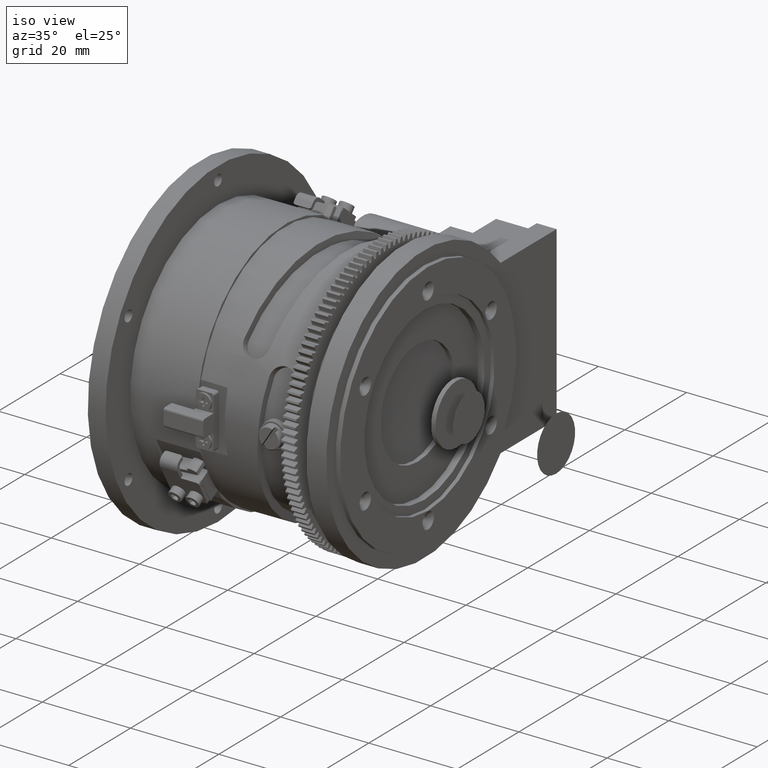
[diagram: clean part render]
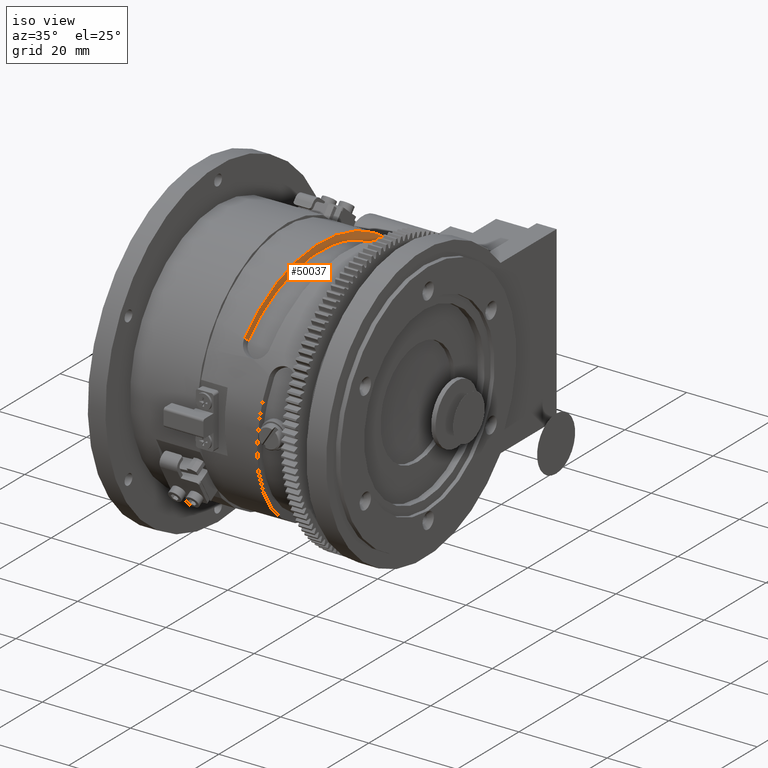
[diagram: same view with one face highlighted and labeled with its STEP entity id]
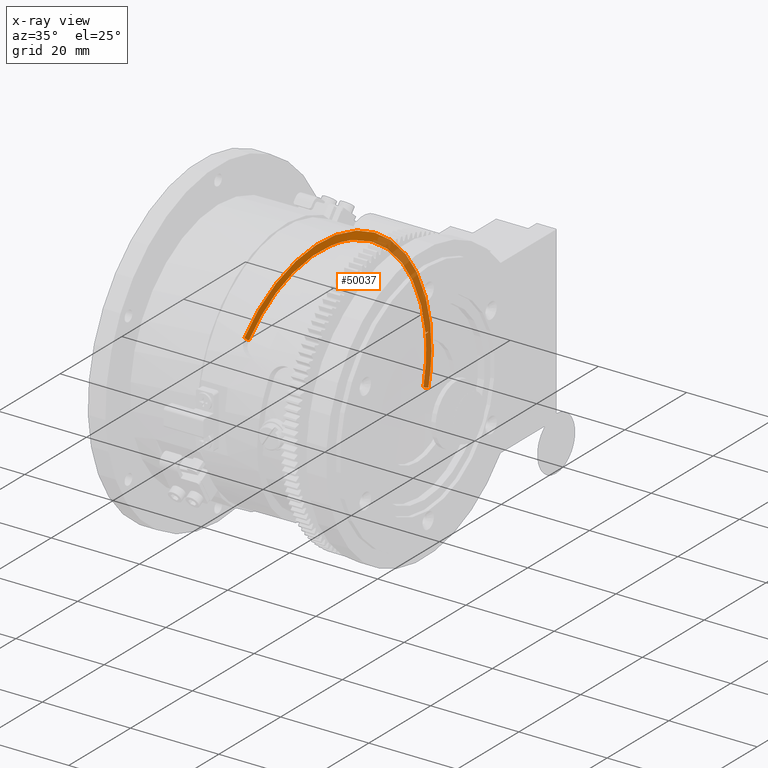
[diagram: x-ray of the same camera — body ghosted, the highlighted face saturated]
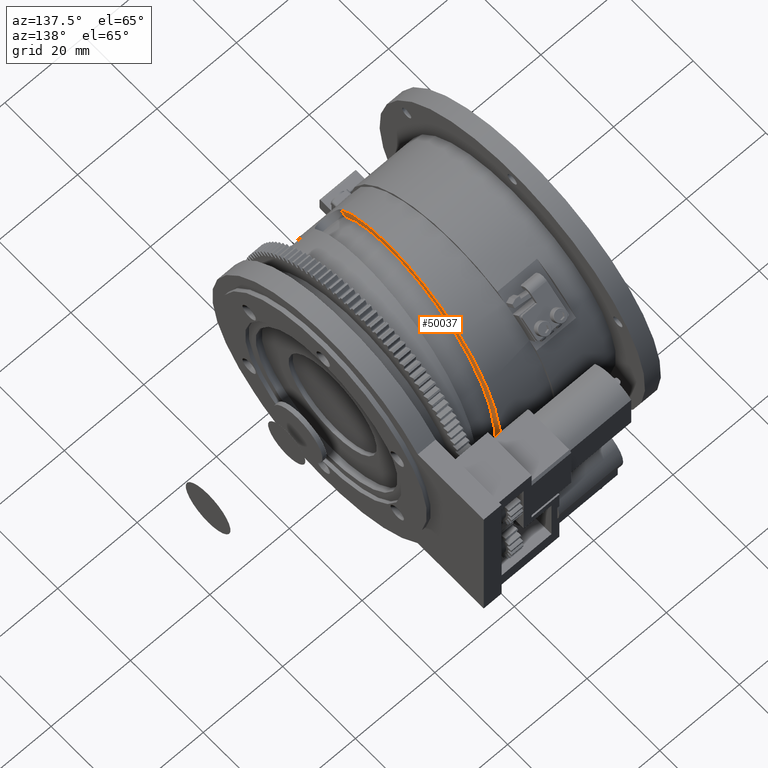
[diagram: same view with one face highlighted and labeled with its STEP entity id]
A machine part, iso view. The second image highlights one B-rep face of the part: STEP entity #50037.
The next image is the same camera in x-ray: the body ghosted, the highlighted face saturated — about 48% of this face is hidden behind the body in this view.
A second angle (auxiliary view) of the same face is appended — the face is thin or edge-on in the first view.
In plain terms, the highlighted face is a freeform B-spline surface patch.
Its self-contained STEP definition (entity closure, byte-faithful):
#193 = CARTESIAN_POINT ( 'NONE',  ( 28.65912248610975865, 2.432918942211645064, 26.16696623082178164 ) ) ;
#463 = CARTESIAN_POINT ( 'NONE',  ( 26.69976171329333070, -16.42266466825820714, 20.48096148711486819 ) ) ;
#590 = EDGE_CURVE ( 'NONE', #56748, #9812, #20956, .T. ) ;
#761 = CARTESIAN_POINT ( 'NONE',  ( 30.28236497446123821, 17.51349618633485861, 19.59324377211298440 ) ) ;
#2550 = CARTESIAN_POINT ( 'NONE',  ( 29.07735906025461148, 7.145748961394721377, 27.28951204744544867 ) ) ;
#2837 = CARTESIAN_POINT ( 'NONE',  ( 28.45235906025461503, 0.3432393797079490438, 28.20747033562495432 ) ) ;
#2866 = CARTESIAN_POINT ( 'NONE',  ( 28.37237634216733184, -0.5552179911066306151, 28.00757262180605522 ) ) ;
#3112 = CARTESIAN_POINT ( 'NONE',  ( 33.45235906025461503, 20.24656686113868886, -8.606772353062458691 ) ) ;
#3208 = CARTESIAN_POINT ( 'NONE',  ( 29.62360881462349127, 12.71113600203987914, 24.96312854992593699 ) ) ;
#3506 = CARTESIAN_POINT ( 'NONE',  ( 29.30970692076924422, 9.545599810577469313, 26.32617760158372988 ) ) ;
#3619 = CARTESIAN_POINT ( 'NONE',  ( 33.45235906025462214, 25.76835782326742574, -10.95407390389767421 ) ) ;
#3674 = CARTESIAN_POINT ( 'NONE',  ( 32.30945722083792049, 26.25242634234819050, 1.215912384961441717 ) ) ;
#3872 = ORIENTED_EDGE ( 'NONE', *, *, #49125, .F. ) ;
#3908 = CARTESIAN_POINT ( 'NONE',  ( 32.66749801122523422, 27.88925024329572722, -2.632409474507216629 ) ) ;
#4233 = CARTESIAN_POINT ( 'NONE',  ( 29.47073172647060346, 10.50077017519247846, 24.09058888010519794 ) ) ;
#4381 = CARTESIAN_POINT ( 'NONE',  ( 25.95235906025461148, -23.08152830379399489, 15.85064828835579220 ) ) ;
#4524 = CARTESIAN_POINT ( 'NONE',  ( 30.14816684389557722, 16.45647464454130571, 20.48948593595337542 ) ) ;
#4581 = CARTESIAN_POINT ( 'NONE',  ( 30.01202517995882957, 16.37711844866021238, 22.77616175634334539 ) ) ;
#4808 = EDGE_CURVE ( 'NONE', #9812, #8354, #39338, .T. ) ;
#5072 = CARTESIAN_POINT ( 'NONE',  ( 30.55201856064747545, 19.46305011897737458, 17.61735985081367062 ) ) ;
#5166 = CARTESIAN_POINT ( 'NONE',  ( 30.01485906025461148, 16.51370943821415693, 22.94538587502783500 ) ) ;
#5463 = CARTESIAN_POINT ( 'NONE',  ( 32.20235906025461503, 28.10105597160057300, 2.471810932882144041 ) ) ;
#6017 = FACE_OUTER_BOUND ( 'NONE', #42348, .T. ) ;
#6209 = CARTESIAN_POINT ( 'NONE',  ( 32.46553726518576610, 26.24006662815195057, -0.3906039416165908440 ) ) ;
#6530 = VERTEX_POINT ( 'NONE', #12996 ) ;
#6672 = DIRECTION ( 'NONE',  ( -0.000000000000000000, -0.8243402965640715951, 0.5660945817269925628 ) ) ;
#6768 = CARTESIAN_POINT ( 'NONE',  ( 32.79616908713558132, 25.98279367461262268, -3.782388144531659169 ) ) ;
#6891 = CARTESIAN_POINT ( 'NONE',  ( 26.81129707406424956, -16.54613559106062581, 22.59229528694194045 ) ) ;
#7440 = CARTESIAN_POINT ( 'NONE',  ( 31.88985906025461503, 27.58080930295187372, 5.922681335438159778 ) ) ;
#7538 = CARTESIAN_POINT ( 'NONE',  ( 30.94890720888204072, 23.46678115323301128, 15.37200372231181866 ) ) ;
#7718 = CARTESIAN_POINT ( 'NONE',  ( 29.38985906025461148, 8.219079897831178982, 20.58442557442861798 ) ) ;
#7816 = CARTESIAN_POINT ( 'NONE',  ( 29.27056138118002337, 9.140176902100501266, 26.46962728146469956 ) ) ;
#8354 = VERTEX_POINT ( 'NONE', #35006 ) ;
#8377 = B_SPLINE_CURVE_WITH_KNOTS ( 'NONE', 3,
 ( #56506, #52154, #47854, #25821 ),
 .UNSPECIFIED., .F., .F.,
 ( 4, 4 ),
 ( 0.000000000000000000, 1.000000000000000000 ),
 .UNSPECIFIED. ) ;
#8565 = CARTESIAN_POINT ( 'NONE',  ( 27.23974288612929939, -11.75059710440809368, 23.47563838131990721 ) ) ;
#8902 = CARTESIAN_POINT ( 'NONE',  ( 32.58961866922962258, 27.95648434805076477, -1.778872371129446961 ) ) ;
#9132 = CARTESIAN_POINT ( 'NONE',  ( 29.94515265722432673, 14.76008814353951770, 21.70987556328335444 ) ) ;
#9244 = B_SPLINE_CURVE_WITH_KNOTS ( 'NONE', 3,
 ( #26639, #13661, #13365, #44030 ),
 .UNSPECIFIED., .F., .F.,
 ( 4, 4 ),
 ( 0.000000000000000000, 1.000000000000000000 ),
 .UNSPECIFIED. ) ;
#9348 = VERTEX_POINT ( 'NONE', #24250 ) ;
#9361 = CARTESIAN_POINT ( 'NONE',  ( 32.44719334315014692, 26.99999999999519318, -0.2076254192251460462 ) ) ;
#9411 = CARTESIAN_POINT ( 'NONE',  ( 29.74078396447835004, 12.97436995792459946, 22.82214480320803318 ) ) ;
#9493 = CARTESIAN_POINT ( 'NONE',  ( 33.45235906025461503, 25.76835782326742574, -10.95407390389767599 ) ) ;
#9681 = CARTESIAN_POINT ( 'NONE',  ( 31.29596108562676804, 23.70817834560676829, 11.27369308180726470 ) ) ;
#9773 = CARTESIAN_POINT ( 'NONE',  ( 29.07735906025461148, 7.161061280597709633, 27.34798957326140467 ) ) ;
#9812 = VERTEX_POINT ( 'NONE', #37376 ) ;
#10059 = CARTESIAN_POINT ( 'NONE',  ( 29.38985906025461148, 10.48306281514285843, 26.25449916447578147 ) ) ;
#10167 = ORIENTED_EDGE ( 'NONE', *, *, #13561, .T. ) ;
#10619 = DIRECTION ( 'NONE',  ( -0.000000000000000000, 0.9202984936881225542, -0.3912169251392028091 ) ) ;
#10929 = CARTESIAN_POINT ( 'NONE',  ( 30.95235906025461148, 18.54900819954161406, 12.13285396802671023 ) ) ;
#11242 = CARTESIAN_POINT ( 'NONE',  ( 26.57625661421236885, -18.56199752841578388, 20.98068365063580387 ) ) ;
#11380 = CARTESIAN_POINT ( 'NONE',  ( 33.45235906025462214, 24.15136915671667950, -10.26669547347366596 ) ) ;
#11482 = CARTESIAN_POINT ( 'NONE',  ( 30.95235906025461148, 23.60782861759842177, 15.44181414112490458 ) ) ;
#11509 = CARTESIAN_POINT ( 'NONE',  ( 27.74916927094057328, -7.316598481445510949, 27.04080433988005083 ) ) ;
#11775 = CARTESIAN_POINT ( 'NONE',  ( 28.45235906025461503, 0.2696880840562460580, 22.16301240656245852 ) ) ;
#12074 = CARTESIAN_POINT ( 'NONE',  ( 28.13985906025461503, -2.468959678458861440, 22.02671307077540774 ) ) ;
#12175 = CARTESIAN_POINT ( 'NONE',  ( 29.42775170132942719, 10.75390369934423518, 25.85613310963880096 ) ) ;
#12996 = CARTESIAN_POINT ( 'NONE',  ( 32.46553726518576610, 26.24006662815195057, -0.3906039416165908440 ) ) ;
#13038 = B_SPLINE_CURVE_WITH_KNOTS ( 'NONE', 3,
 ( #11380, #50152, #42058, #46676, #6768, #24102, #24666, #6209 ),
 .UNSPECIFIED., .F., .F.,
 ( 4, 2, 2, 4 ),
 ( 1.734723475976806902E-18, 0.005072786137763096205, 0.007609179206644643007, 0.01014557227552619068 ),
 .UNSPECIFIED. ) ;
#13187 = CARTESIAN_POINT ( 'NONE',  ( 27.30816222686728878, -11.11609942801271345, 23.78262341404516178 ) ) ;
#13246 = CARTESIAN_POINT ( 'NONE',  ( 31.73052852826863912, 26.97262835616573895, 7.563897322628196918 ) ) ;
#13365 = CARTESIAN_POINT ( 'NONE',  ( 32.46259314346599467, 26.74668887605067624, -0.3676711234893771940 ) ) ;
#13473 = CARTESIAN_POINT ( 'NONE',  ( 29.87692134225526175, 14.17364480063911536, 22.09733835304622573 ) ) ;
#13561 = EDGE_CURVE ( 'NONE', #39456, #21370, #45637, .T. ) ;
#13661 = CARTESIAN_POINT ( 'NONE',  ( 32.46403207727055218, 26.49337775210135959, -0.3791418827682444537 ) ) ;
#14048 = CARTESIAN_POINT ( 'NONE',  ( 27.03605236495523556, -13.59988555652041420, 22.48756606360255716 ) ) ;
#14838 = EDGE_CURVE ( 'NONE', #8354, #21713, #24563, .T. ) ;
#14973 = CARTESIAN_POINT ( 'NONE',  ( 25.95235906025461148, -23.13098872158784047, 15.88461396325941166 ) ) ;
#15250 = CARTESIAN_POINT ( 'NONE',  ( 26.26490207277272049, -21.18367363142739634, 18.72027137942719932 ) ) ;
#15861 = CARTESIAN_POINT ( 'NONE',  ( 27.51329321891867608, -9.783509473713300153, 26.24928392833183466 ) ) ;
#16114 = CARTESIAN_POINT ( 'NONE',  ( 30.32735906025461148, 19.17942975512082526, 20.68643686755478939 ) ) ;
#16512 = CARTESIAN_POINT ( 'NONE',  ( 31.49733994976936557, 26.16891741504155533, 9.995820576151221104 ) ) ;
#16599 = ORIENTED_EDGE ( 'NONE', *, *, #4808, .F. ) ;
#16703 = CARTESIAN_POINT ( 'NONE',  ( 26.26490207059180193, -21.13837711968179534, 18.68024227332767850 ) ) ;
#16909 = CARTESIAN_POINT ( 'NONE',  ( 32.90315167702465260, 27.52728029956022837, -5.195400926755771032 ) ) ;
#17461 = EDGE_CURVE ( 'NONE', #6530, #9348, #9244, .T. ) ;
#17529 = CARTESIAN_POINT ( 'NONE',  ( 27.44377270436880778, -9.836194628620431146, 24.33988739036506033 ) ) ;
#17588 = CARTESIAN_POINT ( 'NONE',  ( 30.79377799454486819, 22.48501455124823778, 16.77321080316725599 ) ) ;
#17803 = CARTESIAN_POINT ( 'NONE',  ( 28.11906137544889006, -3.121048410002574602, 26.06612039952910820 ) ) ;
#18161 = CARTESIAN_POINT ( 'NONE',  ( 32.44676915559867325, 26.74743036426332310, -0.2015109881059729546 ) ) ;
#18379 = CARTESIAN_POINT ( 'NONE',  ( 26.49709482701399921, -17.99726893954986906, 19.11221766579418357 ) ) ;
#18471 = CARTESIAN_POINT ( 'NONE',  ( 33.13981604773649536, 27.16932721407341944, -7.811801826521392655 ) ) ;
#19319 = CARTESIAN_POINT ( 'NONE',  ( 30.95235906025461148, 23.65841682177898875, 15.47490374285588821 ) ) ;
#19591 = CARTESIAN_POINT ( 'NONE',  ( 31.26485906025461148, 25.38814228631513714, 12.43525486725171092 ) ) ;
#20165 = CARTESIAN_POINT ( 'NONE',  ( 33.13865351529432957, 26.96957726107866193, -7.721095018187140724 ) ) ;
#20175 = CARTESIAN_POINT ( 'NONE',  ( 27.51485906025460793, -7.715761970860175012, 20.77832687694443337 ) ) ;
#20198 = CARTESIAN_POINT ( 'NONE',  ( 27.04699563397940310, -14.41718346034387466, 24.06485326194721708 ) ) ;
#20734 = CARTESIAN_POINT ( 'NONE',  ( 33.13981626800938329, 21.30168132174813067, -6.124721638048233885 ) ) ;
#20762 = CARTESIAN_POINT ( 'NONE',  ( 27.43535031923805434, -10.58175358623166673, 25.93754981607253995 ) ) ;
#20830 = CARTESIAN_POINT ( 'NONE',  ( 31.14565006803320912, 24.53719612102320369, 13.49491668283747536 ) ) ;
#20956 = B_SPLINE_CURVE_WITH_KNOTS ( 'NONE', 3,
 ( #31707, #18161, #40444, #26529 ),
 .UNSPECIFIED., .F., .F.,
 ( 4, 4 ),
 ( 0.000000000000000000, 1.000000000000000000 ),
 .UNSPECIFIED. ) ;
#21057 = CARTESIAN_POINT ( 'NONE',  ( 26.11004490840779368, -22.10115941880112800, 17.27824997097878423 ) ) ;
#21126 = CARTESIAN_POINT ( 'NONE',  ( 32.00473062582525330, 27.61902664600693313, 4.623390182970912754 ) ) ;
#21370 = VERTEX_POINT ( 'NONE', #33425 ) ;
#21713 = VERTEX_POINT ( 'NONE', #4381 ) ;
#21844 = CARTESIAN_POINT ( 'NONE',  ( 29.06620275459465574, 6.554028761957967575, 25.42108325387525625 ) ) ;
#22185 = CARTESIAN_POINT ( 'NONE',  ( 30.48269193981735370, 20.24947749995233792, 19.35709938962689947 ) ) ;
#22404 = CARTESIAN_POINT ( 'NONE',  ( 28.25505325193904937, -1.727165168773918902, 26.19542853896651380 ) ) ;
#22684 = CARTESIAN_POINT ( 'NONE',  ( 27.51124470681638456, -9.188299750859441062, 24.59165559922970345 ) ) ;
#22780 = CARTESIAN_POINT ( 'NONE',  ( 26.57735906025461148, -18.71039222748457220, 21.19232302173065818 ) ) ;
#23620 = CARTESIAN_POINT ( 'NONE',  ( 33.45235906025462214, 23.00746234220305553, -9.780423128480066453 ) ) ;
#23920 = CARTESIAN_POINT ( 'NONE',  ( 28.13985906025461503, -3.149045844434347874, 28.09407130754353332 ) ) ;
#24102 = CARTESIAN_POINT ( 'NONE',  ( 32.63148761303893508, 26.17270866774196136, -2.097939037934213768 ) ) ;
#24250 = CARTESIAN_POINT ( 'NONE',  ( 32.46122055992481847, 26.99999999999519318, -0.3561924302656296337 ) ) ;
#24502 = CARTESIAN_POINT ( 'NONE',  ( 26.85077186943468064, -16.19430775936352163, 22.84579102450897636 ) ) ;
#24563 = LINE ( 'NONE', #37902, #32939 ) ;
#24666 = CARTESIAN_POINT ( 'NONE',  ( 32.54846705757098135, 26.22736126399961520, -1.244127335434832782 ) ) ;
#24771 = CARTESIAN_POINT ( 'NONE',  ( 27.20235906025461148, -13.01023543785598591, 25.03024110667934110 ) ) ;
#25057 = CARTESIAN_POINT ( 'NONE',  ( 28.13985906025461503, -3.142312318038551044, 28.03399845371414756 ) ) ;
#25146 = CARTESIAN_POINT ( 'NONE',  ( 28.45054843445874937, 0.3042525897938893609, 28.01170901622427678 ) ) ;
#25334 = CARTESIAN_POINT ( 'NONE',  ( 26.26490185249985032, -16.60872594512155587, 14.67733166337585615 ) ) ;
#25436 = CARTESIAN_POINT ( 'NONE',  ( 31.88676000801998711, 27.37558628735438049, 5.896022689511071668 ) ) ;
#25821 = CARTESIAN_POINT ( 'NONE',  ( 32.44719334315014692, 26.99999999999519318, -0.2076254192251460462 ) ) ;
#25842 = CARTESIAN_POINT ( 'NONE',  ( 33.29467321178494643, 26.44587164134495438, -9.360290746362297298 ) ) ;
#26108 = EDGE_CURVE ( 'NONE', #9348, #56748, #8377, .T. ) ;
#26165 = CARTESIAN_POINT ( 'NONE',  ( 31.36336364565732993, 23.99813469867637039, 10.64278091737183018 ) ) ;
#26452 = CARTESIAN_POINT ( 'NONE',  ( 26.63238885020762936, -16.95840196779029441, 20.03973942160996558 ) ) ;
#26516 = CARTESIAN_POINT ( 'NONE',  ( 30.24713637369232444, 18.37718639065834125, 21.14284532935770144 ) ) ;
#26529 = CARTESIAN_POINT ( 'NONE',  ( 32.44597700248070993, 26.24229109278998351, -0.1892783408781241739 ) ) ;
#26639 = CARTESIAN_POINT ( 'NONE',  ( 32.46553726518576610, 26.24006662815195057, -0.3906039416165908440 ) ) ;
#26749 = CARTESIAN_POINT ( 'NONE',  ( 26.08887515483874253, -20.83764895619452062, 16.01439099099116703 ) ) ;
#27111 = CARTESIAN_POINT ( 'NONE',  ( 33.45235906025461503, 25.82357573288871322, -10.97754691940602889 ) ) ;
#27345 = ORIENTED_EDGE ( 'NONE', *, *, #14838, .F. ) ;
#27402 = CARTESIAN_POINT ( 'NONE',  ( 33.13981604991742103, 27.11123171018900990, -7.795098062279084417 ) ) ;
#28543 = CARTESIAN_POINT ( 'NONE',  ( 25.95235906025461148, -18.13548652440956488, 12.45408079799383749 ) ) ;
#28903 = EDGE_CURVE ( 'NONE', #39456, #6530, #13038, .T. ) ;
#29124 = CARTESIAN_POINT ( 'NONE',  ( 27.98378497730211478, -4.809867450997110438, 27.63722174623825367 ) ) ;
#29393 = CARTESIAN_POINT ( 'NONE',  ( 31.88985906025461503, 21.67063588089075665, 4.653535334987124905 ) ) ;
#29421 = CARTESIAN_POINT ( 'NONE',  ( 26.69349564633671790, -17.57195595123145182, 21.80391189032886956 ) ) ;
#29494 = CARTESIAN_POINT ( 'NONE',  ( 31.41962408647288996, 25.85200982889152854, 10.78924886614738732 ) ) ;
#29766 = CARTESIAN_POINT ( 'NONE',  ( 31.84763921753750537, 27.28184350234930733, 6.315443048598846865 ) ) ;
#29796 = ORIENTED_EDGE ( 'NONE', *, *, #590, .F. ) ;
#29977 = ORIENTED_EDGE ( 'NONE', *, *, #26108, .F. ) ;
#30512 = CARTESIAN_POINT ( 'NONE',  ( 30.48450148632927892, 18.98942522807912070, 18.12667697399422195 ) ) ;
#30785 = CARTESIAN_POINT ( 'NONE',  ( 31.09400226995597905, 22.76616440734377633, 13.12692875695563011 ) ) ;
#30841 = CARTESIAN_POINT ( 'NONE',  ( 30.32618256693048409, 19.02417269862632665, 20.56257495874023533 ) ) ;
#31074 = CARTESIAN_POINT ( 'NONE',  ( 26.22445407168605769, -19.95519863190543930, 17.10128557815070138 ) ) ;
#31369 = CARTESIAN_POINT ( 'NONE',  ( 28.92976411422995042, 5.185188125361495537, 25.73520139648492133 ) ) ;
#31707 = CARTESIAN_POINT ( 'NONE',  ( 32.44719334315014692, 26.99999999999519318, -0.2076254192251460462 ) ) ;
#31716 = ORIENTED_EDGE ( 'NONE', *, *, #17461, .F. ) ;
#32589 = CARTESIAN_POINT ( 'NONE',  ( 30.32735906025461148, 19.22052853316750998, 20.73076494655669322 ) ) ;
#32939 = VECTOR ( 'NONE', #6672, 1000.000000000000114 ) ;
#33175 = CARTESIAN_POINT ( 'NONE',  ( 30.01485906025461148, 12.94731317322563768, 17.98996754278732979 ) ) ;
#33425 = CARTESIAN_POINT ( 'NONE',  ( 33.45235906025462214, 25.76835782326742574, -10.95407390389767421 ) ) ;
#33460 = CARTESIAN_POINT ( 'NONE',  ( 26.57735906025461148, -14.66958763380828579, 16.61550628931127349 ) ) ;
#33485 = CARTESIAN_POINT ( 'NONE',  ( 27.67015483103310558, -8.151504752119629771, 26.80102488056359888 ) ) ;
#34140 = CARTESIAN_POINT ( 'NONE',  ( 28.92047251858768320, 5.438225567626939316, 27.52017775411905376 ) ) ;
#34582 = CARTESIAN_POINT ( 'NONE',  ( 31.90561648487160440, 25.73089934572402981, 5.341694538190211894 ) ) ;
#35006 = CARTESIAN_POINT ( 'NONE',  ( 25.95235906025461503, -21.63314071425948271, 14.85600521425929621 ) ) ;
#35151 = CARTESIAN_POINT ( 'NONE',  ( 27.84755335640964446, -5.879077330388030376, 25.61394034596737512 ) ) ;
#35212 = CARTESIAN_POINT ( 'NONE',  ( 29.85711732524660889, 14.95989073949658810, 23.73024928044905124 ) ) ;
#35338 = VECTOR ( 'NONE', #10619, 1000.000000000000000 ) ;
#35425 = CARTESIAN_POINT ( 'NONE',  ( 26.90169369434437741, -14.76732119307863123, 21.73798549737891506 ) ) ;
#36010 = CARTESIAN_POINT ( 'NONE',  ( 30.95970134550612940, 22.04241273969081050, 14.30999916288177864 ) ) ;
#36095 = CARTESIAN_POINT ( 'NONE',  ( 32.82735906025461503, 27.92585236673706817, -4.397738277216574510 ) ) ;
#36281 = CARTESIAN_POINT ( 'NONE',  ( 31.49876168944955879, 24.52912316768307832, 9.354216765481872642 ) ) ;
#36957 = CARTESIAN_POINT ( 'NONE',  ( 27.51485906025460793, -9.841103677378931991, 26.50181146213913408 ) ) ;
#37376 = CARTESIAN_POINT ( 'NONE',  ( 32.44597700248070993, 26.24229109278998351, -0.1892783408781241739 ) ) ;
#37528 = CARTESIAN_POINT ( 'NONE',  ( 30.32735906025461148, 15.06955195045207319, 16.25362896736448448 ) ) ;
#37826 = CARTESIAN_POINT ( 'NONE',  ( 31.26485906025461148, 19.90517214180088956, 9.749665255863778413 ) ) ;
#37853 = CARTESIAN_POINT ( 'NONE',  ( 27.20197323670282685, -12.92441110207019861, 24.89738129499911423 ) ) ;
#37902 = CARTESIAN_POINT ( 'NONE',  ( 25.95235906025461148, -20.60850741410177989, 14.15236454317481396 ) ) ;
#38105 = CARTESIAN_POINT ( 'NONE',  ( 26.57735906025461148, -18.67038426121054684, 21.14700800457799090 ) ) ;
#38386 = CARTESIAN_POINT ( 'NONE',  ( 27.20235906025461148, -10.22232784402970118, 19.66661801239090934 ) ) ;
#38485 = CARTESIAN_POINT ( 'NONE',  ( 31.30258682998406172, 25.32089436655442327, 11.95976104694337927 ) ) ;
#38787 = CARTESIAN_POINT ( 'NONE',  ( 32.20126263878589867, 27.94254066854823293, 2.489243960695788793 ) ) ;
#38947 = CARTESIAN_POINT ( 'NONE',  ( 32.17477761693199056, 26.15029184517637972, 2.602905701560098262 ) ) ;
#38986 = ORIENTED_EDGE ( 'NONE', *, *, #28903, .F. ) ;
#39338 = B_SPLINE_CURVE_WITH_KNOTS ( 'NONE', 3,
 ( #43291, #3674, #38947, #34582, #52234, #43849, #36281, #26165, #9681, #30785, #36010, #40076, #53929, #5072, #30512, #761, #4524, #9132, #13473, #9411, #44693, #4233, #53365, #52795, #21844, #31369, #57146, #193, #44139, #49046, #22404, #17803, #48205, #35151, #39806, #22684, #17529, #13187, #8565, #14048, #35425, #463, #26452, #18379, #48469, #31074, #26749, #40372 ),
 .UNSPECIFIED., .F., .F.,
 ( 4, 2, 2, 2, 2, 2, 2, 2, 2, 2, 2, 2, 2, 2, 2, 2, 2, 2, 2, 2, 2, 2, 2, 4 ),
 ( 0.000000000000000000, 0.004175414603186849115, 0.008350829206373698230, 0.01043853650796712669, 0.01252624380956055515, 0.01670165841274739993, 0.01878936571434082839, 0.02087707301593425685, 0.02505248761912110336, 0.02714019492071452835, 0.02922790222230795334, 0.03340331682549479986, 0.03549102412708822485, 0.03757873142868164984, 0.04175414603186849982, 0.04384185333346192481, 0.04592956063505534287, 0.05010497523824219979, 0.05219268253983562478, 0.05428038984142904977, 0.05845580444461589975, 0.06054351174620931780, 0.06263121904780273586, 0.06680663365098957196 ),
 .UNSPECIFIED. ) ;
#39456 = VERTEX_POINT ( 'NONE', #50764 ) ;
#39806 = CARTESIAN_POINT ( 'NONE',  ( 27.71331433216208140, -7.221318298000476865, 25.26794545393210001 ) ) ;
#39866 = CARTESIAN_POINT ( 'NONE',  ( 29.54557951133596561, 11.94093860138066532, 25.34084138205706083 ) ) ;
#40076 = CARTESIAN_POINT ( 'NONE',  ( 30.75618680604546640, 20.80997833779030159, 16.00393893716876903 ) ) ;
#40372 = CARTESIAN_POINT ( 'NONE',  ( 25.95235906025461503, -21.63314071425948271, 14.85600521425929621 ) ) ;
#40444 = CARTESIAN_POINT ( 'NONE',  ( 32.44636370617071464, 26.49486072852665686, -0.1953952570330225458 ) ) ;
#40752 = CARTESIAN_POINT ( 'NONE',  ( 28.45235906025461503, 0.3439748926644660698, 28.26791491491557906 ) ) ;
#41315 = CARTESIAN_POINT ( 'NONE',  ( 31.88985906025461503, 27.63991103717248521, 5.935372795442670046 ) ) ;
#41880 = CARTESIAN_POINT ( 'NONE',  ( 27.51485906025460793, -9.820060690185677288, 26.44514329792928109 ) ) ;
#42058 = CARTESIAN_POINT ( 'NONE',  ( 33.12334373993626713, 25.32435242339511561, -7.085543817337504713 ) ) ;
#42348 = EDGE_LOOP ( 'NONE', ( #16599, #29796, #29977, #31716, #38986, #10167, #3872, #27345 ) ) ;
#42480 = CARTESIAN_POINT ( 'NONE',  ( 25.95235906025461148, -23.08152830379399489, 15.85064828835579220 ) ) ;
#42728 = CARTESIAN_POINT ( 'NONE',  ( 25.95235906025461148, -23.08152830379399489, 15.85064828835579220 ) ) ;
#42821 = CARTESIAN_POINT ( 'NONE',  ( 28.60809009869029751, 2.032960775029263978, 27.93949681249124950 ) ) ;
#43123 = CARTESIAN_POINT ( 'NONE',  ( 28.68650842865758221, 2.891708573525373804, 27.86344633675947335 ) ) ;
#43291 = CARTESIAN_POINT ( 'NONE',  ( 32.44597700248070993, 26.24229109278998351, -0.1892783408781241739 ) ) ;
#43849 = CARTESIAN_POINT ( 'NONE',  ( 31.56704888659312047, 24.77103944091200916, 8.693657001712034926 ) ) ;
#44030 = CARTESIAN_POINT ( 'NONE',  ( 32.46122055992481847, 26.99999999999519318, -0.3561924302656296337 ) ) ;
#44139 = CARTESIAN_POINT ( 'NONE',  ( 28.52494720406422957, 1.050507062916588907, 26.25866137770508857 ) ) ;
#44197 = CARTESIAN_POINT ( 'NONE',  ( 29.07528162116220471, 7.102380443121606213, 27.13853768320590021 ) ) ;
#44693 = CARTESIAN_POINT ( 'NONE',  ( 29.67312928730141763, 12.36388071483730577, 23.15837572999619454 ) ) ;
#45077 = CARTESIAN_POINT ( 'NONE',  ( 32.82735906025461503, 27.86613921128431670, -4.388334702853317282 ) ) ;
#45637 = LINE ( 'NONE', #23620, #35338 ) ;
#46225 = CARTESIAN_POINT ( 'NONE',  ( 31.26485906025461148, 25.33385545320113508, 12.40866487109935612 ) ) ;
#46525 = CARTESIAN_POINT ( 'NONE',  ( 26.73267064611766486, -17.23483620894559820, 22.07140299530048821 ) ) ;
#46676 = CARTESIAN_POINT ( 'NONE',  ( 32.87803155696499857, 25.84767974656297795, -4.615153518447500325 ) ) ;
#46786 = CARTESIAN_POINT ( 'NONE',  ( 32.82735906025461503, 21.89482366600910623, -3.447977266527606055 ) ) ;
#46814 = CARTESIAN_POINT ( 'NONE',  ( 28.13861725477186582, -3.119356683768820027, 27.87829224706888809 ) ) ;
#47083 = CARTESIAN_POINT ( 'NONE',  ( 29.38985906025461148, 10.46064714269422780, 26.19835982200006441 ) ) ;
#47182 = CARTESIAN_POINT ( 'NONE',  ( 29.38826446737050446, 10.35209216283367617, 26.01961357718488088 ) ) ;
#47252 = B_SPLINE_CURVE_WITH_KNOTS ( 'NONE', 3,
 ( #42480, #21057, #54899, #50855, #11242, #29421, #46525, #6891, #24502, #20198, #37853, #20762, #15861, #33485, #11509, #29124, #46814, #2866, #25146, #42821, #43123, #34140, #44197, #7816, #3506, #47182, #12175, #39866, #3208, #35212, #4581, #26516, #30841, #22185, #52855, #17588, #7538, #20830, #47461, #56133, #38485, #29494, #16512, #51787, #13246, #29766, #25436, #48527, #21126, #38787, #57203, #8902, #3908, #56525, #16909, #20165, #25842, #3619 ),
 .UNSPECIFIED., .F., .F.,
 ( 4, 2, 2, 2, 2, 2, 2, 2, 2, 2, 2, 2, 2, 2, 2, 2, 2, 2, 2, 2, 2, 2, 2, 2, 2, 2, 2, 2, 4 ),
 ( 0.000000000000000000, 0.005142881240593795943, 0.007714321860890694348, 0.009000042171039139213, 0.01028576248118758321, 0.01542864372178135920, 0.01800008434207825414, 0.02057152496237514214, 0.02571440620296892854, 0.02828584682326582347, 0.03085728744356271494, 0.03600016868415650828, 0.03728588899430494707, 0.03857160930445339281, 0.04114304992475028427, 0.04628593116534407415, 0.04885737178564095867, 0.05142881240593785014, 0.05657169364653163307, 0.05785741395668007186, 0.05914313426682851760, 0.06171457488712540213, 0.06428601550742228665, 0.06557173581757073932, 0.06685745612771917812, 0.07200033736831294717, 0.07457177798860983864, 0.07714321860890671623, 0.08228609984950049916 ),
 .UNSPECIFIED. ) ;
#47368 = CARTESIAN_POINT ( 'NONE',  ( 29.07735906025461148, 5.614517041095852257, 21.44175946584999437 ) ) ;
#47461 = CARTESIAN_POINT ( 'NONE',  ( 31.18507589188087081, 24.74296240430876992, 13.11378157958337454 ) ) ;
#47854 = CARTESIAN_POINT ( 'NONE',  ( 32.45186925123338284, 27.00123673337823149, -0.2571563902227576581 ) ) ;
#48205 = CARTESIAN_POINT ( 'NONE',  ( 28.05072727741298166, -3.818814634510786288, 25.97299132618148221 ) ) ;
#48469 = CARTESIAN_POINT ( 'NONE',  ( 26.42899248768385334, -18.50167983087317225, 18.62455569184712800 ) ) ;
#48527 = CARTESIAN_POINT ( 'NONE',  ( 31.96525540725913572, 27.54410660633665842, 5.050544464745947870 ) ) ;
#48808 = B_SPLINE_SURFACE_WITH_KNOTS ( 'NONE', 1, 3, ( 
 ( #27111, #18471, #36095, #53744, #41315, #19591, #19319, #32589, #5166, #10059, #9773, #40752, #23920, #36957, #54596, #22780, #15250, #14973 ),
 ( #9493, #27402, #45077, #5463, #7440, #46225, #11482, #16114, #50544, #47083, #2550, #2837, #25057, #41880, #24771, #38105, #16703, #42728 ),
 ( #3112, #20734, #46786, #51691, #29393, #37826, #10929, #37528, #33175, #7718, #47368, #11775, #12074, #20175, #38386, #33460, #25334, #28543 ) ),
 .UNSPECIFIED., .F., .F., .F.,
 ( 2, 1, 2 ),
 ( 4, 2, 2, 2, 2, 2, 2, 2, 4 ),
 ( -0.01000000000000000021, 0.000000000000000000, 1.000000000000000000 ),
 ( 0.000000000000000000, 0.1250000000000000000, 0.2500000000000000000, 0.3750000000000000000, 0.5000000000000000000, 0.6250000000000000000, 0.7500000000000000000, 0.8750000000000000000, 1.000000000000000000 ),
 .UNSPECIFIED. ) ;
#49046 = CARTESIAN_POINT ( 'NONE',  ( 28.32265527800053206, -1.031671994237286727, 26.23187220868249980 ) ) ;
#49125 = EDGE_CURVE ( 'NONE', #21713, #21370, #47252, .T. ) ;
#50037 = ADVANCED_FACE ( 'NONE', ( #6017 ), #48808, .F. ) ;
#50152 = CARTESIAN_POINT ( 'NONE',  ( 33.28650320812357677, 24.81926888365523354, -8.695528498993846611 ) ) ;
#50544 = CARTESIAN_POINT ( 'NONE',  ( 30.01485906025461148, 16.47839858410535996, 22.89632232718386717 ) ) ;
#50764 = CARTESIAN_POINT ( 'NONE',  ( 33.45235906025462214, 24.15136915671667950, -10.26669547347366596 ) ) ;
#50855 = CARTESIAN_POINT ( 'NONE',  ( 26.49847796660266042, -19.19364559175670237, 20.40423431021411815 ) ) ;
#51691 = CARTESIAN_POINT ( 'NONE',  ( 32.20235906025461503, 22.07940112054330584, 1.942137161550255842 ) ) ;
#51787 = CARTESIAN_POINT ( 'NONE',  ( 31.65278882236399838, 26.72922663584785496, 8.383144464659698869 ) ) ;
#52154 = CARTESIAN_POINT ( 'NONE',  ( 32.45654054728758808, 27.00123673337822794, -0.3066379643546091049 ) ) ;
#52234 = CARTESIAN_POINT ( 'NONE',  ( 31.77114936805520173, 25.41362756236860676, 6.693489227645325279 ) ) ;
#52795 = CARTESIAN_POINT ( 'NONE',  ( 29.13396701815392476, 7.227603550341854088, 25.23764486267057094 ) ) ;
#52855 = CARTESIAN_POINT ( 'NONE',  ( 30.56053242814353155, 20.83115796465513725, 18.72944147207593346 ) ) ;
#53365 = CARTESIAN_POINT ( 'NONE',  ( 29.33657298722032891, 9.216695513135595874, 24.61055474246324692 ) ) ;
#53744 = CARTESIAN_POINT ( 'NONE',  ( 32.20235906025461503, 28.16127252011114734, 2.477107670595462885 ) ) ;
#53929 = CARTESIAN_POINT ( 'NONE',  ( 30.68775326003452975, 20.37276504909004515, 16.55693607831659619 ) ) ;
#54596 = CARTESIAN_POINT ( 'NONE',  ( 27.20235906025461148, -13.03811451379424824, 25.08387733762222638 ) ) ;
#54899 = CARTESIAN_POINT ( 'NONE',  ( 26.26529113060373177, -21.00477278525253411, 18.59340624501698613 ) ) ;
#56133 = CARTESIAN_POINT ( 'NONE',  ( 31.26349677008208161, 25.13454924894352871, 12.34665500896863577 ) ) ;
#56506 = CARTESIAN_POINT ( 'NONE',  ( 32.46122055992481847, 26.99999999999519318, -0.3561924302656296337 ) ) ;
#56525 = CARTESIAN_POINT ( 'NONE',  ( 32.82413693986012504, 27.67508088751919715, -4.339326750074913086 ) ) ;
#56748 = VERTEX_POINT ( 'NONE', #9361 ) ;
#57146 = CARTESIAN_POINT ( 'NONE',  ( 28.86186145094688982, 4.497675129000616501, 25.86403823026948956 ) ) ;
#57203 = CARTESIAN_POINT ( 'NONE',  ( 32.35632747098527773, 28.04115324423009881, 0.7818828530572552449 ) ) ;